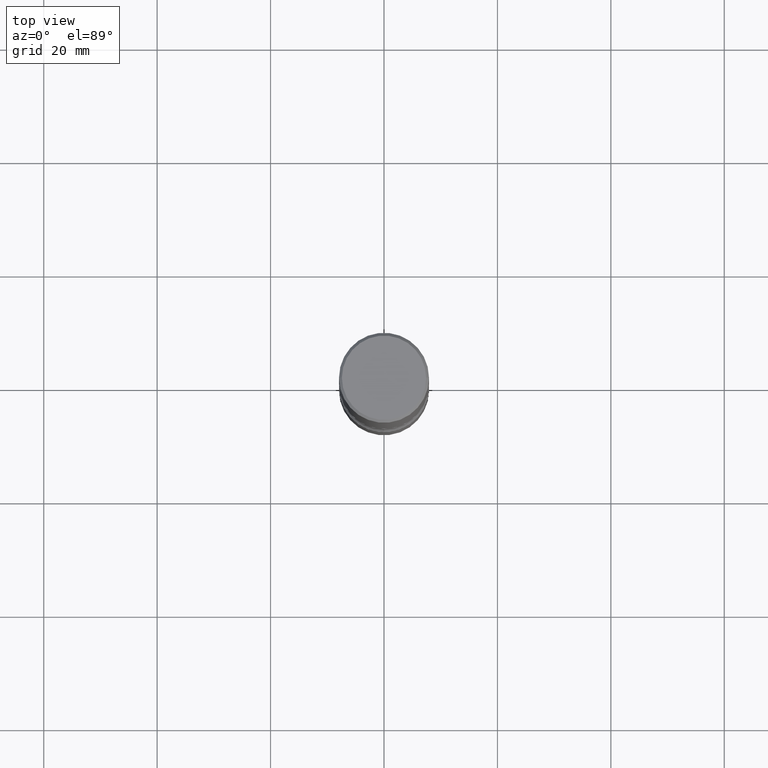
[diagram: clean part render]
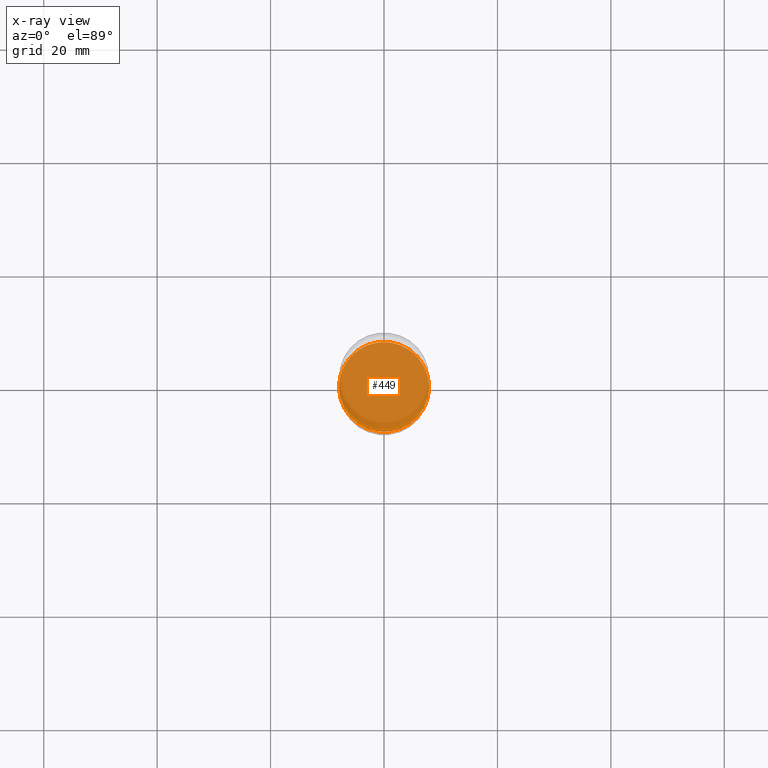
[diagram: x-ray — body ghosted, one internal face saturated and labeled with its STEP entity id]
A machine part, top view, then the same camera in x-ray: the body is ghosted and one INTERNAL B-rep face — a face not visible from any outside direction — is saturated and labeled: STEP entity #449.
In plain terms, the highlighted planar face has unit normal (0, -0, -1).
Its self-contained STEP definition (entity closure, byte-faithful):
#21 = DIRECTION ( 'NONE',  ( 2.438088387897960049E-29, -3.491481338843145188E-15, -1.000000000000000000 ) ) ;
#45 = EDGE_CURVE ( 'NONE', #392, #204, #419, .T. ) ;
#56 = CARTESIAN_POINT ( 'NONE',  ( 0.3125000000000000555, -1.527523085743875734E-14, -3.750000000000000000 ) ) ;
#63 = AXIS2_PLACEMENT_3D ( 'NONE', #228, #410, #82 ) ;
#72 = DIRECTION ( 'NONE',  ( 1.000000000000000000, -6.982962677686268288E-15, 0.000000000000000000 ) ) ;
#82 = DIRECTION ( 'NONE',  ( 1.000000000000000000, -6.982962677686268288E-15, 0.000000000000000000 ) ) ;
#104 = AXIS2_PLACEMENT_3D ( 'NONE', #285, #280, #72 ) ;
#120 = EDGE_CURVE ( 'NONE', #204, #392, #121, .T. ) ;
#121 = CIRCLE ( 'NONE', #104, 0.3125000000000000555 ) ;
#175 = AXIS2_PLACEMENT_3D ( 'NONE', #359, #21, #361 ) ;
#178 = CARTESIAN_POINT ( 'NONE',  ( -0.3125000000000000555, -1.303732740149423396E-14, -3.750000000000000000 ) ) ;
#204 = VERTEX_POINT ( 'NONE', #56 ) ;
#228 = CARTESIAN_POINT ( 'NONE',  ( 9.170508023194262238E-29, -1.309305502066179741E-14, -3.750000000000000000 ) ) ;
#280 = DIRECTION ( 'NONE',  ( -2.445468806185136597E-29, 3.491481338843145583E-15, 1.000000000000000000 ) ) ;
#285 = CARTESIAN_POINT ( 'NONE',  ( 9.170508023194262238E-29, -1.309305502066179741E-14, -3.750000000000000000 ) ) ;
#320 = FACE_OUTER_BOUND ( 'NONE', #414, .T. ) ;
#345 = ORIENTED_EDGE ( 'NONE', *, *, #120, .T. ) ;
#359 = CARTESIAN_POINT ( 'NONE',  ( 9.170508023194262238E-29, -1.309305502066179741E-14, -3.750000000000000000 ) ) ;
#361 = DIRECTION ( 'NONE',  ( -1.000000000000000000, 6.982962677686265922E-15, -4.876176775795935793E-29 ) ) ;
#392 = VERTEX_POINT ( 'NONE', #178 ) ;
#410 = DIRECTION ( 'NONE',  ( -2.445468806185136597E-29, 3.491481338843145583E-15, 1.000000000000000000 ) ) ;
#414 = EDGE_LOOP ( 'NONE', ( #345, #417 ) ) ;
#417 = ORIENTED_EDGE ( 'NONE', *, *, #45, .T. ) ;
#419 = CIRCLE ( 'NONE', #63, 0.3125000000000000555 ) ;
#449 = ADVANCED_FACE ( 'NONE', ( #320 ), #491, .F. ) ;
#491 = PLANE ( 'NONE',  #175 ) ;